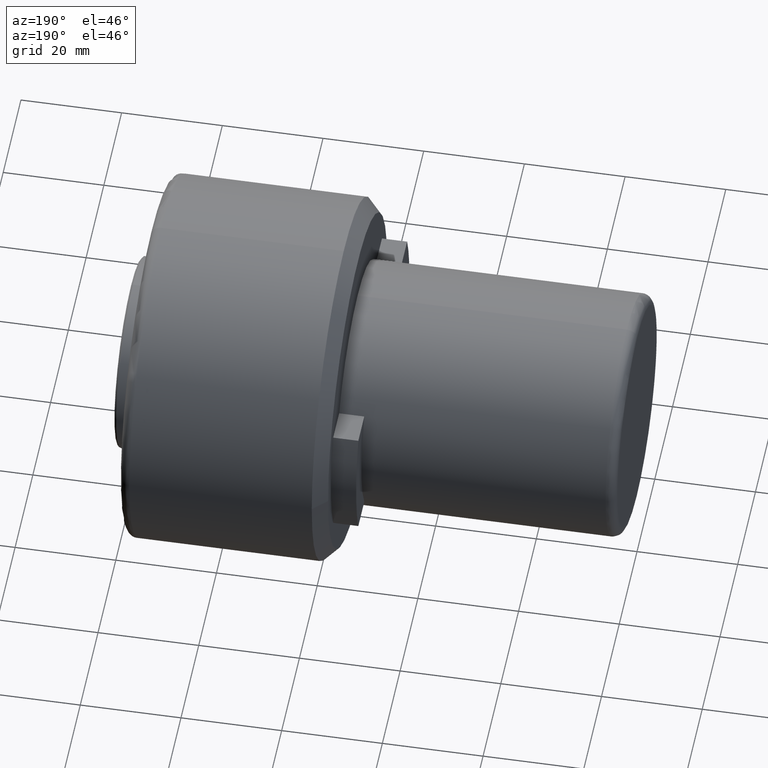
[diagram: clean part render]
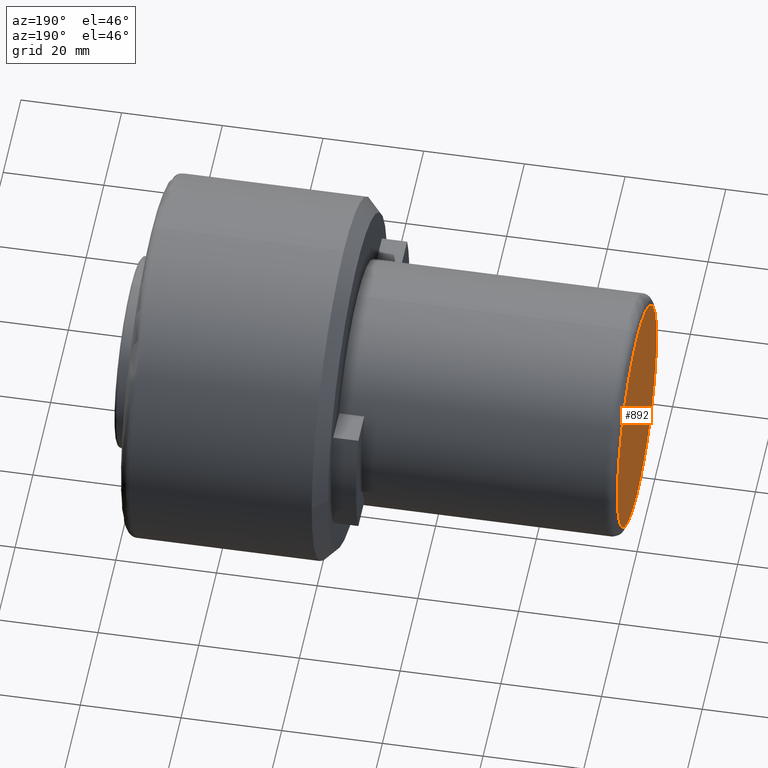
[diagram: same view with one face highlighted and labeled with its STEP entity id]
A machine part, auxiliary view. The second image highlights one B-rep face of the part: STEP entity #892.
In plain terms, the highlighted planar face has unit normal (-1, 0, 0).
Its self-contained STEP definition (entity closure, byte-faithful):
#47 = CIRCLE ( 'NONE', #1270, 22.00000000000000000 ) ;
#75 = PLANE ( 'NONE',  #128 ) ;
#128 = AXIS2_PLACEMENT_3D ( 'NONE', #1036, #1136, #945 ) ;
#137 = AXIS2_PLACEMENT_3D ( 'NONE', #827, #389, #1243 ) ;
#144 = VERTEX_POINT ( 'NONE', #1298 ) ;
#199 = VERTEX_POINT ( 'NONE', #1160 ) ;
#389 = DIRECTION ( 'NONE',  ( -1.000000000000000000, 0.0000000000000000000, 0.0000000000000000000 ) ) ;
#438 = DIRECTION ( 'NONE',  ( -1.000000000000000000, 0.0000000000000000000, 0.0000000000000000000 ) ) ;
#481 = FACE_OUTER_BOUND ( 'NONE', #870, .T. ) ;
#698 = ORIENTED_EDGE ( 'NONE', *, *, #906, .T. ) ;
#770 = CIRCLE ( 'NONE', #137, 22.00000000000000000 ) ;
#781 = EDGE_CURVE ( 'NONE', #199, #144, #47, .T. ) ;
#827 = CARTESIAN_POINT ( 'NONE',  ( 0.0000000000000000000, 0.0000000000000000000, -7.733975497063264400E-015 ) ) ;
#870 = EDGE_LOOP ( 'NONE', ( #1341, #698 ) ) ;
#892 = ADVANCED_FACE ( 'NONE', ( #481 ), #75, .T. ) ;
#906 = EDGE_CURVE ( 'NONE', #144, #199, #770, .T. ) ;
#945 = DIRECTION ( 'NONE',  ( 0.0000000000000000000, 0.0000000000000000000, 1.000000000000000000 ) ) ;
#1036 = CARTESIAN_POINT ( 'NONE',  ( 0.0000000000000000000, 21.60620000000000100, -21.60620000000000100 ) ) ;
#1094 = DIRECTION ( 'NONE',  ( 0.0000000000000000000, 0.0000000000000000000, 1.000000000000000000 ) ) ;
#1136 = DIRECTION ( 'NONE',  ( -1.000000000000000000, 0.0000000000000000000, 0.0000000000000000000 ) ) ;
#1160 = CARTESIAN_POINT ( 'NONE',  ( 0.0000000000000000000, 0.0000000000000000000, 21.99999999999999300 ) ) ;
#1243 = DIRECTION ( 'NONE',  ( 0.0000000000000000000, 0.0000000000000000000, 1.000000000000000000 ) ) ;
#1245 = CARTESIAN_POINT ( 'NONE',  ( 0.0000000000000000000, 0.0000000000000000000, -7.733975497063264400E-015 ) ) ;
#1270 = AXIS2_PLACEMENT_3D ( 'NONE', #1245, #438, #1094 ) ;
#1298 = CARTESIAN_POINT ( 'NONE',  ( 0.0000000000000000000, 2.816687638038912400E-015, -22.00000000000000700 ) ) ;
#1341 = ORIENTED_EDGE ( 'NONE', *, *, #781, .T. ) ;